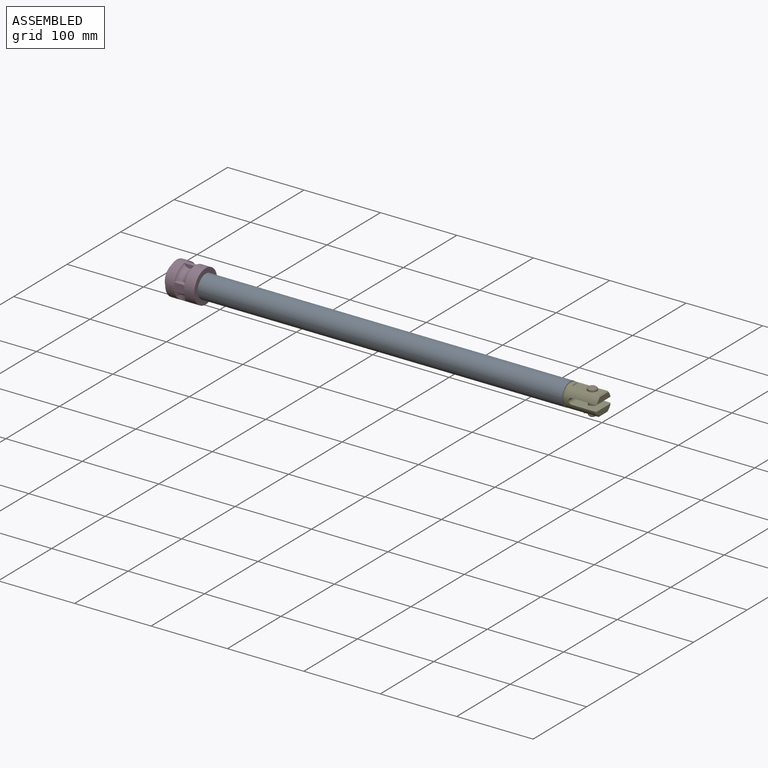
[diagram: assembled view]
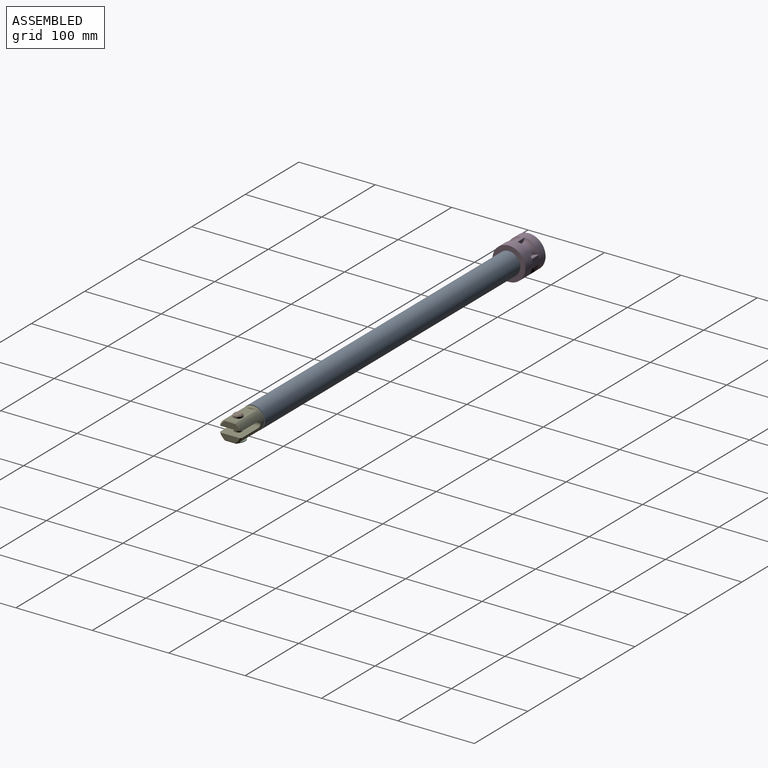
[diagram: assembled view, second angle]
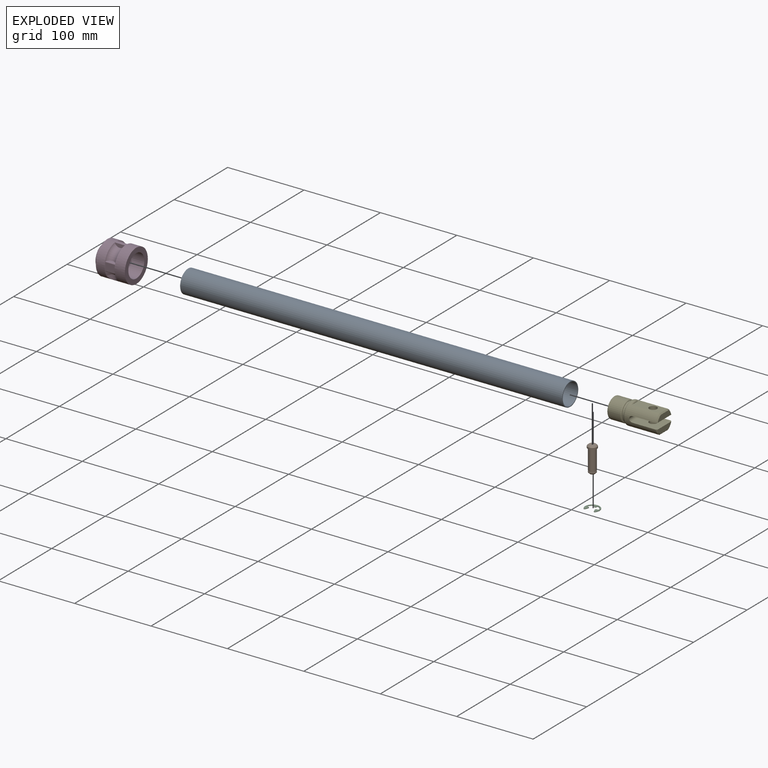
[diagram: exploded view]
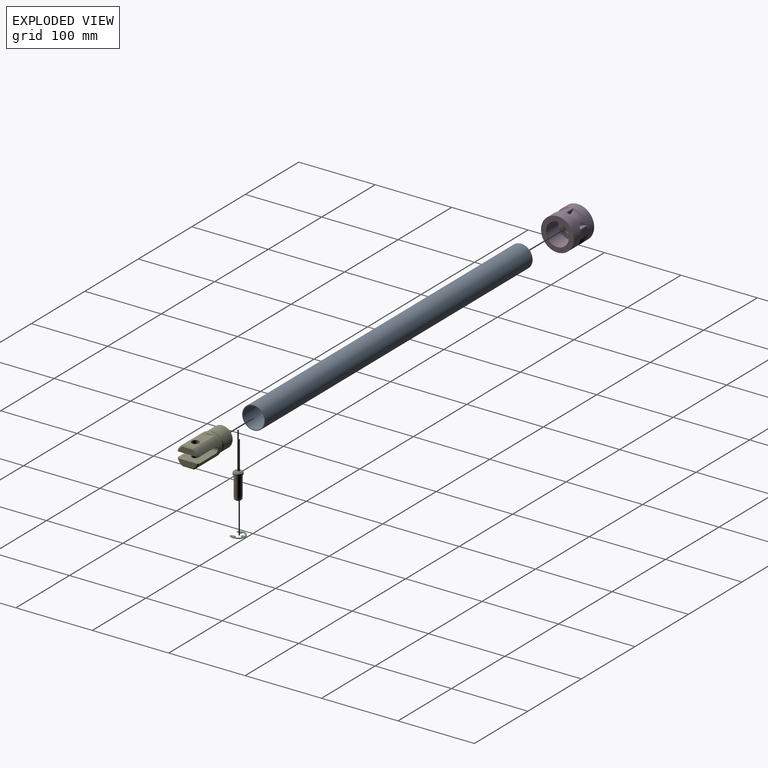
[diagram: exploded view, second angle]
ASSEMBLY  parts=5 mates=4
PART A: 4 faces, bbox 500x30x30 mm
  f0: cylinder r=14mm len=500mm, axis (-1,0,0), area 43982.3mm2, adj f2,f3
  f1: cylinder r=15mm len=500mm, axis (-1,0,0), area 47123.9mm2, adj f2,f3
  f2: plane 30x30mm, normal (1,0,0), area 91.1mm2, adj f0,f1
  f3: plane 30x30mm, normal (-1,0,0), area 91.1mm2, adj f0,f1
PART B: 11 faces, bbox 34x12x12 mm
  f0: plane 12x12mm, normal (1,0,0), area 39.2mm2, adj f1,f8
  f1: cylinder r=6mm len=12mm, axis (-1,0,0), area 82.9mm2, adj f0,f10
  f2: plane 9x9mm, normal (-1,0,0), area 63.6mm2, adj f10
  f3: plane 6.7x6.7mm, normal (1,0,0), area 35.3mm2, adj f9
  f4: cylinder r=4.85mm len=9.7mm, axis (-1,0,0), area 42.7mm2, adj f5,f9
  f5: plane 9.7x9.7mm, normal (-1,0,0), area 14.5mm2, adj f4,f6
  f6: cylinder r=4.35mm len=8.7mm, axis (-1,0,0), area 30.1mm2, adj f5,f7
  f7: plane 9.7x9.7mm, normal (1,0,0), area 14.5mm2, adj f6,f8
  f8: cylinder r=4.85mm len=26.3mm, axis (-1,0,0), area 801.5mm2, adj f0,f7
  f9: cone r=4.85mm half-angle=45deg, axis (-1,0,0), area 54.6mm2, adj f3,f4
  f10: cone r=4.5mm half-angle=45deg, axis (1,0,0), area 70mm2, adj f1,f2
PART C: 26 faces, bbox 18.9x15.5x0.7 mm
  f0: cylinder r=1mm len=1.37mm, axis (0,0,-1), area 1.2mm2, adj f1,f23,f24,f25
  f1: plane 1.69x0.7mm, normal (-0.97,-0.26,0), area 1.2mm2, adj f0,f2,f24,f25
  f2: cylinder r=0.5mm len=0.7mm, axis (0,0,-1), area 0.5mm2, adj f1,f3,f24,f25
  f3: cylinder r=4.35mm len=1.37mm, axis (0,0,-1), area 1mm2, adj f2,f4,f24,f25
  f4: cylinder r=0.5mm len=0.7mm, axis (0,0,-1), area 0.5mm2, adj f3,f5,f24,f25
  f5: plane 1.69x0.7mm, normal (0.97,-0.26,0), area 1.2mm2, adj f4,f6,f24,f25
  f6: cylinder r=1mm len=1.37mm, axis (0,0,-1), area 1.2mm2, adj f5,f7,f24,f25
  f7: cylinder r=7.65mm len=5.41mm, axis (0,0,-1), area 5.1mm2, adj f6,f8,f24,f25
  f8: cylinder r=1mm len=1.21mm, axis (0,0,-1), area 1.2mm2, adj f7,f9,f24,f25
  f9: plane 1.75x0.7mm, normal (-0.06,1,0), area 1.2mm2, adj f8,f10,f24,f25
  f10: cylinder r=0.5mm len=0.7mm, axis (0,0,-1), area 0.5mm2, adj f9,f11,f24,f25
  f11: cylinder r=4.35mm len=0.91mm, axis (0,0,-1), area 0.6mm2, adj f10,f12,f24,f25
  f12: cylinder r=0.5mm len=0.7mm, axis (0,0,-1), area 0.2mm2, adj f11,f13,f24,f25
  f13: plane 3.88x1.29mm, normal (-0.95,-0.32,0), area 2.9mm2, adj f12,f14,f24,f25
  f14: cylinder r=1.2mm len=2.11mm, axis (0,0,-1), area 1.8mm2, adj f13,f15,f24,f25
  f15: cylinder r=9.45mm len=18.9mm, axis (0,0,-1), area 29.2mm2, adj f14,f16,f24,f25
  f16: cylinder r=1.2mm len=2.11mm, axis (0,0,-1), area 1.8mm2, adj f15,f17,f24,f25
  f17: plane 3.88x1.29mm, normal (0.95,-0.32,0), area 2.9mm2, adj f16,f18,f24,f25
  f18: cylinder r=0.5mm len=0.7mm, axis (0,0,-1), area 0.2mm2, adj f17,f19,f24,f25
  f19: cylinder r=4.35mm len=0.91mm, axis (0,0,-1), area 0.6mm2, adj f18,f20,f24,f25
  f20: cylinder r=0.5mm len=0.7mm, axis (0,0,-1), area 0.5mm2, adj f19,f21,f24,f25
  f21: plane 1.75x0.7mm, normal (0.06,1,0), area 1.2mm2, adj f20,f22,f24,f25
  f22: cylinder r=1mm len=1.21mm, axis (0,0,-1), area 1.2mm2, adj f21,f23,f24,f25
  f23: cylinder r=7.65mm len=5.41mm, axis (0,0,-1), area 5.1mm2, adj f0,f22,f24,f25
  f24: plane 18.9x15.53mm, normal (0,0,1), area 109.2mm2, adj f0,f1,f2,f3,f4,f5,f6,f7
  f25: plane 18.9x15.53mm, normal (0,0,-1), area 109.2mm2, adj f0,f1,f2,f3,f4,f5,f6,f7
PART D: 25 faces, bbox 43x51.7x47.2 mm
  f0: torus R=23.9mm, axis (1,0,0), area 470.8mm2, adj f8,f11,f13,f14,f15,f16,f17,f19
  f1: torus R=23.9mm, axis (1,0,0), area 470.8mm2, adj f8,f12,f18,f20,f21,f22,f23,f24
  f2: cylinder r=16mm len=32mm, axis (-1,0,0), area 402.1mm2, adj f9,f10
  f3: plane 30x30mm, normal (-1,0,0), area 452.4mm2, adj f4,f10
  f4: cylinder r=9mm len=20mm, axis (-1,0,0), area 1131mm2, adj f3,f5
  f5: plane 30x30mm, normal (1,0,0), area 452.4mm2, adj f4,f6
  f6: cylinder r=15mm len=30mm, axis (-1,0,0), area 2167.7mm2, adj f5,f7
  f7: plane 43x43mm, normal (1,0,0), area 745.3mm2, adj f6,f8
  f8: cylinder r=21.5mm len=43mm, axis (-1,0,0), area 3820.7mm2, adj f0,f1,f7,f9,f11,f12,f18,f19
  f9: plane 43x43mm, normal (-1,0,0), area 648mm2, adj f2,f8
  f10: cone r=15mm half-angle=45deg, axis (1,0,0), area 137.7mm2, adj f2,f3
  f11: cylinder r=7mm len=13.15mm, axis (0,0.04,-1), area 76.4mm2, adj f0,f8
  f12: cylinder r=7mm len=13.15mm, axis (0,0.04,1), area 76.4mm2, adj f1,f8
  f13: plane 12.84x10.09mm, normal (0,-1,0), area 125.6mm2, adj f0,f14,f15
  f14: cylinder r=1mm len=12.87mm, axis (-1,0,0), area 19.4mm2, adj f0,f13,f16
  f15: cylinder r=1mm len=12.87mm, axis (-1,0,0), area 19.4mm2, adj f0,f13,f17
  f16: plane 12.19x3.83mm, normal (0,-0.04,-1), area 33mm2, adj f0,f14
  f17: plane 12.19x3.83mm, normal (0,-0.04,1), area 33mm2, adj f0,f15
  f18: plane 13.15x4.67mm, normal (0,1,0.04), area 44.6mm2, adj f1,f8
  f19: plane 13.15x4.67mm, normal (0,-1,0.04), area 44.6mm2, adj f0,f8
  f20: plane 12.19x3.83mm, normal (0,0.04,-1), area 33mm2, adj f1,f21
  f21: cylinder r=1mm len=12.87mm, axis (-1,0,0), area 19.4mm2, adj f1,f20,f23
  f22: plane 12.19x3.83mm, normal (0,0.04,1), area 33mm2, adj f1,f24
  f23: plane 12.84x10.09mm, normal (0,1,0), area 125.6mm2, adj f1,f21,f24
  f24: cylinder r=1mm len=12.87mm, axis (-1,0,0), area 19.4mm2, adj f1,f22,f23
PART E: 33 faces, bbox 32x32x66 mm
  f0: cylinder r=14.75mm len=40.5mm, axis (0,0,1), area 1996.9mm2, adj f15,f17,f19,f20,f21,f24,f25,f26
  f1: plane 25.26x7.2mm, normal (0,0,1), area 151.7mm2, adj f19,f27,f28,f29
  f2: cylinder r=5mm len=10mm, axis (1,0,0), area 273.3mm2, adj f15,f19
  f3: plane 25.26x7.2mm, normal (0,0,1), area 151.7mm2, adj f20,f30,f31,f32
  f4: sphere r=9mm, area 339.3mm2, adj f5,f10,f12
  f5: cylinder r=9mm len=18mm, axis (0,0,1), area 537.4mm2, adj f4,f7,f10,f11,f12,f13
  f6: plane 25.5x25.5mm, normal (0,0,-1), area 58.3mm2, adj f9,f26
  f7: plane 24x24mm, normal (0,0,-1), area 197.9mm2, adj f5,f22
  f8: cylinder r=13.5mm len=27mm, axis (0,0,1), area 1357.2mm2, adj f22,f23
  f9: cylinder r=12mm len=24mm, axis (0,0,1), area 226.2mm2, adj f6,f23
  f10: plane 20.71x13.42mm, normal (1,0,0), area 258.5mm2, adj f4,f5,f11
  f11: plane 13.42x3mm, normal (0,0,-1), area 27.9mm2, adj f5,f10
  f12: plane 20.71x13.42mm, normal (-1,0,0), area 258.5mm2, adj f4,f5,f13
  f13: plane 13.42x3mm, normal (0,0,-1), area 27.9mm2, adj f5,f12
  f14: plane 2.24x0.05mm, normal (0,0,1), area 0.1mm2, adj f15,f24
  f15: plane 38.5x15mm, normal (1,0,0), area 472.8mm2, adj f0,f2,f14,f24,f28
  f16: plane 2.24x0.05mm, normal (0,0,1), area 0.1mm2, adj f17,f25
  f17: plane 38.5x15mm, normal (-1,0,0), area 472.8mm2, adj f0,f16,f18,f25,f31
  f18: cylinder r=5mm len=10mm, axis (1,0,0), area 273.3mm2, adj f17,f20
  f19: plane 32.02x28.42mm, normal (-1,0,0), area 827.7mm2, adj f0,f1,f2,f21,f27,f29
  f20: plane 32.02x28.42mm, normal (1,0,0), area 827.7mm2, adj f0,f3,f18,f21,f30,f32
  f21: cylinder r=4mm len=29.5mm, axis (0,-1,0), area 363.8mm2, adj f0,f19,f20
  f22: torus R=12mm, axis (0,0,1), area 191.8mm2, adj f7,f8
  f23: torus R=12mm, axis (0,0,1), area 191.8mm2, adj f8,f9
  f24: torus R=12.75mm, axis (0,0,-1), area 37.3mm2, adj f0,f14,f15
  f25: torus R=12.75mm, axis (0,0,-1), area 37.3mm2, adj f0,f16,f17
  f26: torus R=12.75mm, axis (0,0,-1), area 276.8mm2, adj f0,f6
  f27: cone r=13.25mm half-angle=45deg, axis (0,0,-1), area 21.7mm2, adj f0,f1,f19,f28
  f28: plane 15.02x1.52mm, normal (0.71,0,0.71), area 30.9mm2, adj f1,f15,f27,f29
  f29: cone r=13.25mm half-angle=45deg, axis (0,0,-1), area 21.7mm2, adj f0,f1,f19,f28
  f30: cone r=13.25mm half-angle=45deg, axis (0,0,-1), area 21.7mm2, adj f0,f3,f20,f31
  f31: plane 15.02x1.52mm, normal (-0.71,0,0.71), area 30.9mm2, adj f3,f17,f30,f32
  f32: cone r=13.25mm half-angle=45deg, axis (0,0,-1), area 21.7mm2, adj f0,f3,f20,f31
PLACE A t=(-1.5,0,0)mm
PLACE B rot(axis=(0,1,0),90deg) t=(527.5,0,12.7)mm
PLACE C t=(527.5,0,-14.3)mm
PLACE D at identity fixed
PLACE E rot(axis=(0,1,0),90deg) t=(498.5,0,0)mm
MATE revolute C.f3 <-> B.f1  axis (0,0,1) through (527.5,0,-13.6)mm
MATE revolute B.f1 <-> E.f2  axis (0,0,-1) through (527.5,0,12.7)mm
MATE revolute A.f1 <-> E.f23  axis (1,0,0) through (498.5,0,0)mm
MATE revolute A.f1 <-> D.f0  axis (-1,0,0) through (-1.5,0,0)mm
